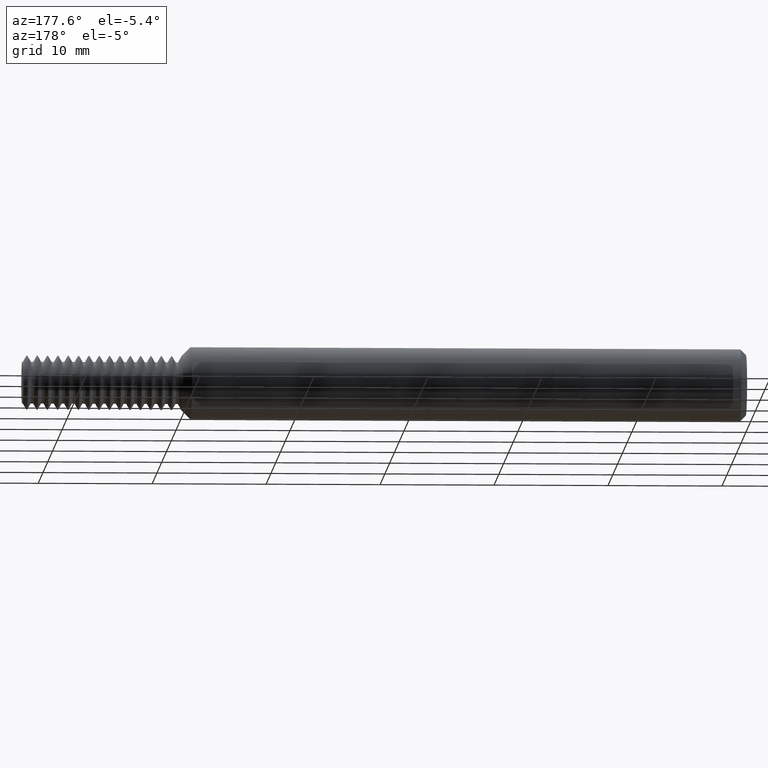
[diagram: clean part render]
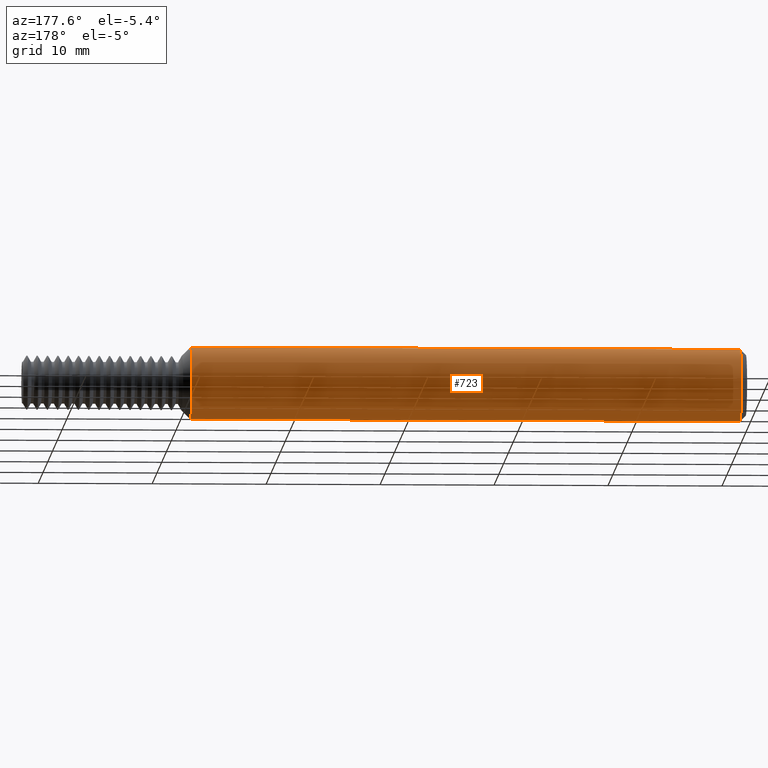
[diagram: same view with one face highlighted and labeled with its STEP entity id]
A machine part, auxiliary view. The second image highlights one B-rep face of the part: STEP entity #723.
In plain terms, the highlighted cylindrical surface (edge-blend (fillet) strip) has radius 3.1712 mm, axis along (-1, -0, -0).
Its self-contained STEP definition (entity closure, byte-faithful):
#6 = DIRECTION ( 'NONE',  ( -1.000000000000000000, -0.000000000000000000, -0.000000000000000000 ) ) ;
#56 = AXIS2_PLACEMENT_3D ( 'NONE', #2572, #3075, #3103 ) ;
#175 = LINE ( 'NONE', #3350, #1845 ) ;
#273 = CIRCLE ( 'NONE', #56, 0.1248500000000000026 ) ;
#327 = VERTEX_POINT ( 'NONE', #2995 ) ;
#471 = DIRECTION ( 'NONE',  ( 0.000000000000000000, 0.000000000000000000, 1.000000000000000000 ) ) ;
#484 = DIRECTION ( 'NONE',  ( 0.000000000000000000, 0.000000000000000000, 1.000000000000000000 ) ) ;
#524 = ORIENTED_EDGE ( 'NONE', *, *, #3278, .T. ) ;
#544 = VERTEX_POINT ( 'NONE', #1753 ) ;
#627 = CIRCLE ( 'NONE', #1457, 0.1248500000000000026 ) ;
#710 = FACE_OUTER_BOUND ( 'NONE', #2574, .T. ) ;
#723 = ADVANCED_FACE ( 'NONE', ( #710 ), #2306, .T. ) ;
#752 = DIRECTION ( 'NONE',  ( -1.000000000000000000, -0.000000000000000000, -0.000000000000000000 ) ) ;
#1074 = DIRECTION ( 'NONE',  ( -1.000000000000000000, -0.000000000000000000, -0.000000000000000000 ) ) ;
#1083 = DIRECTION ( 'NONE',  ( -1.000000000000000000, -0.000000000000000000, -0.000000000000000000 ) ) ;
#1125 = ORIENTED_EDGE ( 'NONE', *, *, #2329, .T. ) ;
#1358 = LINE ( 'NONE', #2116, #1685 ) ;
#1414 = CARTESIAN_POINT ( 'NONE',  ( 0.02000000000000005940, 1.528971528735470422E-17, 0.1248500000000000026 ) ) ;
#1457 = AXIS2_PLACEMENT_3D ( 'NONE', #2612, #6, #484 ) ;
#1516 = CARTESIAN_POINT ( 'NONE',  ( 0.000000000000000000, 0.000000000000000000, 0.000000000000000000 ) ) ;
#1648 = EDGE_CURVE ( 'NONE', #1899, #327, #175, .T. ) ;
#1685 = VECTOR ( 'NONE', #1074, 39.37007874015748143 ) ;
#1753 = CARTESIAN_POINT ( 'NONE',  ( 1.918650000000000411, 0.000000000000000000, 0.1248500000000000026 ) ) ;
#1831 = AXIS2_PLACEMENT_3D ( 'NONE', #1516, #1083, #471 ) ;
#1845 = VECTOR ( 'NONE', #752, 39.37007874015748143 ) ;
#1899 = VERTEX_POINT ( 'NONE', #2346 ) ;
#1962 = EDGE_CURVE ( 'NONE', #544, #3097, #1358, .T. ) ;
#2096 = ORIENTED_EDGE ( 'NONE', *, *, #1648, .T. ) ;
#2116 = CARTESIAN_POINT ( 'NONE',  ( 0.000000000000000000, 0.000000000000000000, 0.1248500000000000026 ) ) ;
#2306 = CYLINDRICAL_SURFACE ( 'NONE', #1831, 0.1248500000000000026 ) ;
#2329 = EDGE_CURVE ( 'NONE', #544, #1899, #627, .T. ) ;
#2346 = CARTESIAN_POINT ( 'NONE',  ( 1.918650000000000411, 1.528971528735470422E-17, -0.1248500000000000026 ) ) ;
#2572 = CARTESIAN_POINT ( 'NONE',  ( 0.02000000000000005940, 0.000000000000000000, 0.000000000000000000 ) ) ;
#2574 = EDGE_LOOP ( 'NONE', ( #1125, #2096, #524, #3106 ) ) ;
#2612 = CARTESIAN_POINT ( 'NONE',  ( 1.918650000000000411, 0.000000000000000000, 0.000000000000000000 ) ) ;
#2995 = CARTESIAN_POINT ( 'NONE',  ( 0.02000000000000005940, 0.000000000000000000, -0.1248500000000000026 ) ) ;
#3075 = DIRECTION ( 'NONE',  ( 1.000000000000000000, 0.000000000000000000, 0.000000000000000000 ) ) ;
#3097 = VERTEX_POINT ( 'NONE', #1414 ) ;
#3103 = DIRECTION ( 'NONE',  ( 0.000000000000000000, 0.000000000000000000, -1.000000000000000000 ) ) ;
#3106 = ORIENTED_EDGE ( 'NONE', *, *, #1962, .F. ) ;
#3278 = EDGE_CURVE ( 'NONE', #327, #3097, #273, .T. ) ;
#3350 = CARTESIAN_POINT ( 'NONE',  ( 0.000000000000000000, 1.528971528735470422E-17, -0.1248500000000000026 ) ) ;